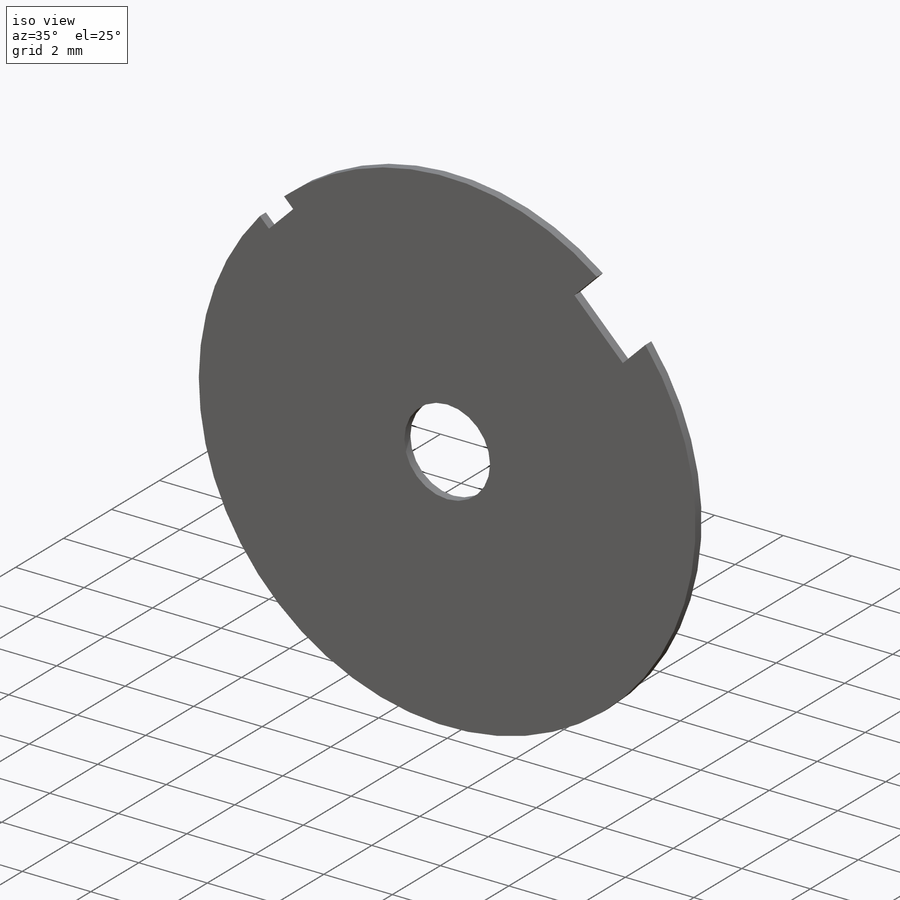
[diagram: iso view]
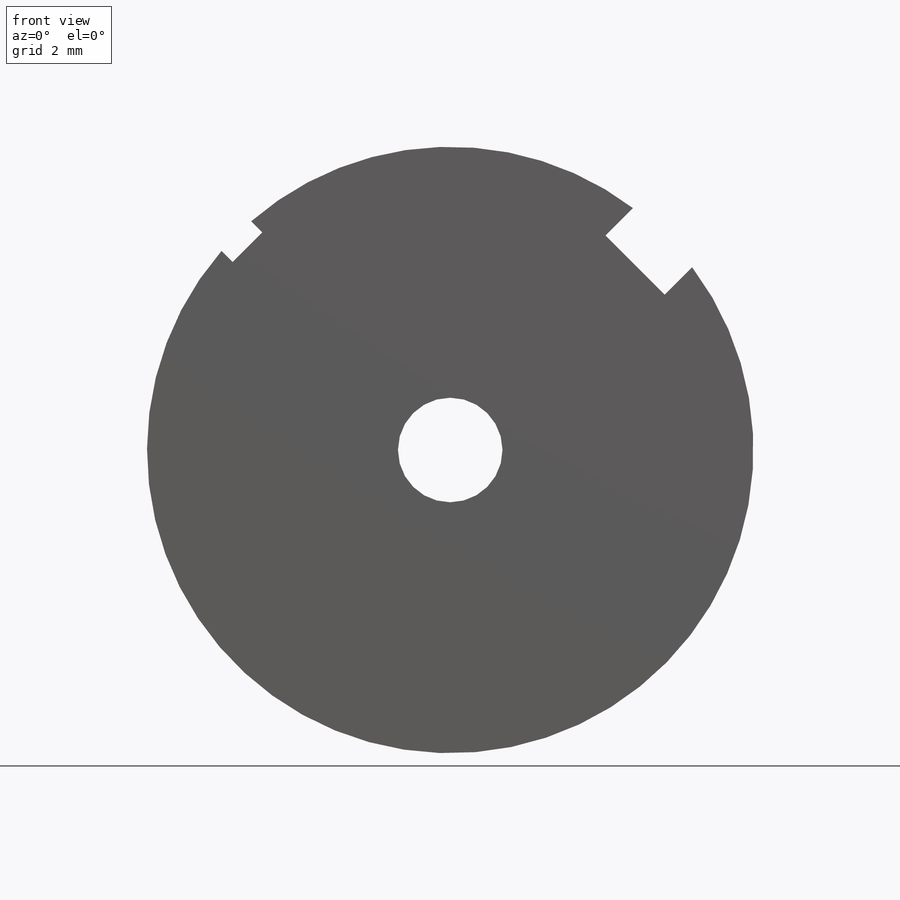
[diagram: front view]
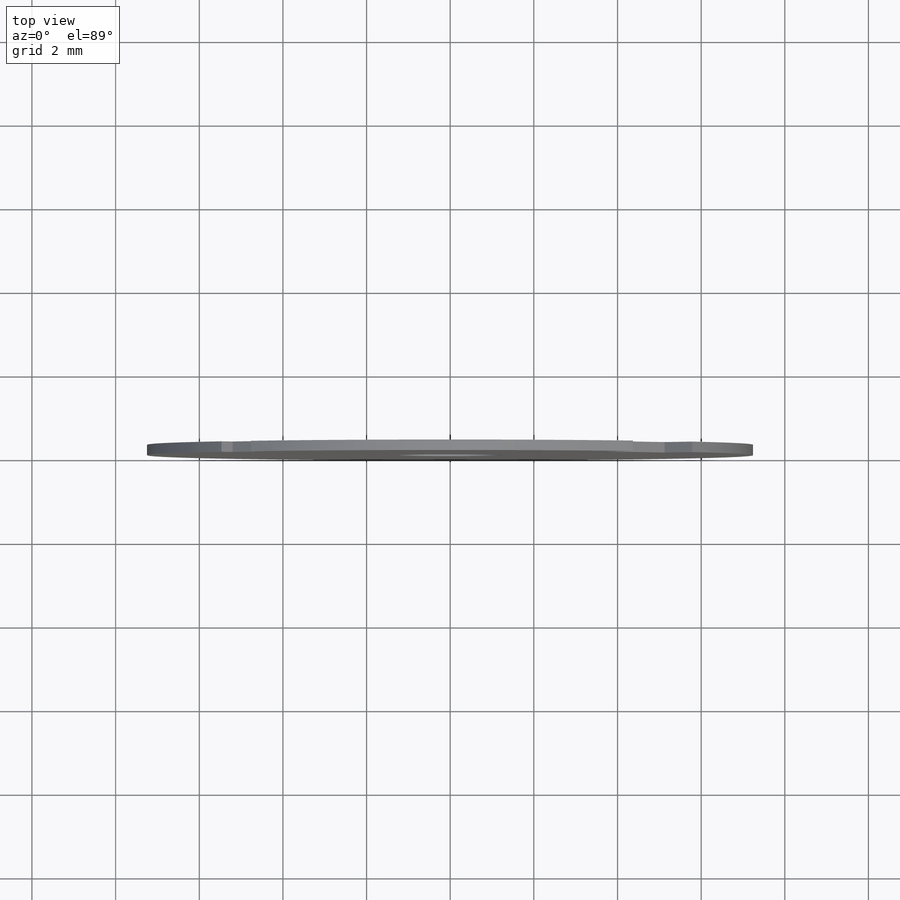
[diagram: top view]
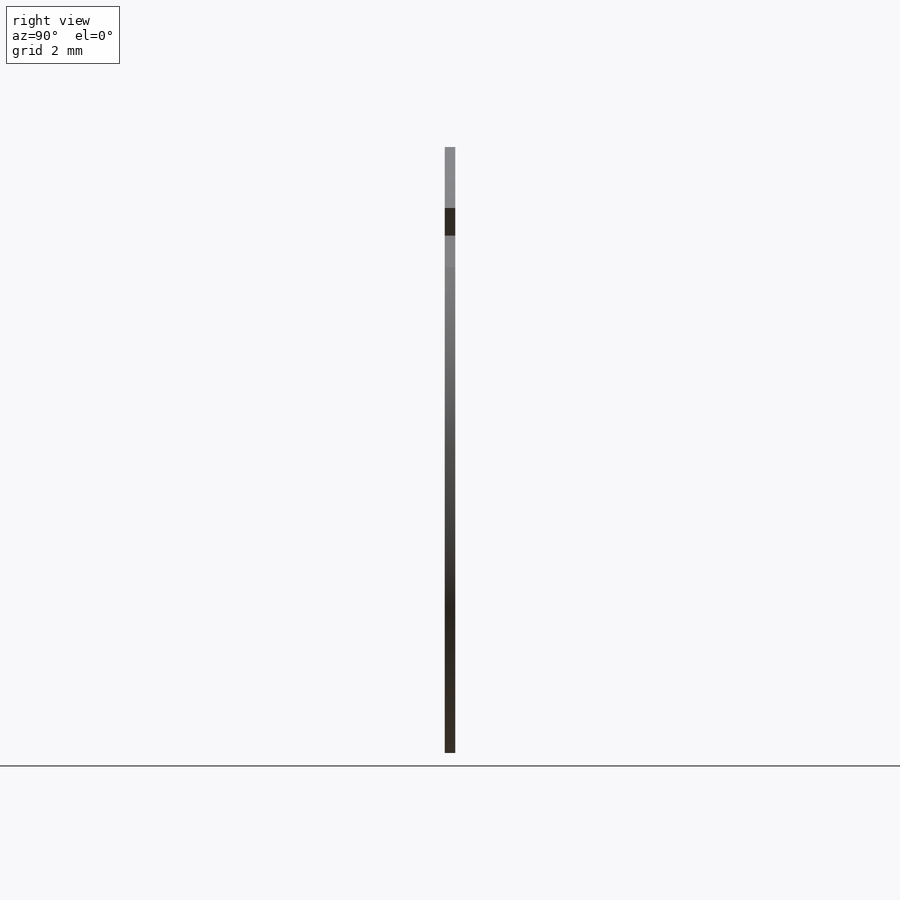
[diagram: right view]
SOLIDWORKS PART (.sldprt)
format: sldprt  version: not decoded by parser v0  size: 185,344 bytes
history: native  units: mm
features: sketch x4, plane x3, sheet_metal_op x2, cut_extrude x2, material x1 + 2 further entries (+8 scaffold rows collapsed)
feature tree (22):
  scaffold x8  (default folders/planes/origin — collapsed)
  material  "Material <sin especificar>"
  plane  "Alzado"
  plane  "Planta"
  plane  "Vista lateral"
  sketch  "Croquis1"  dims[D1=14.5mm]
  sheet_metal_op  "Chapa metálica1"
  sheet_metal_op  "Brida base1"
  sketch  "Croquis5"  dims[D1=2.5mm]
  cut_extrude  "Cortar-Extruir1"  Depth=10mm
  sketch  "Croquis6"  dims[c1.D7=13.75mm c1.D1=~10.124893mm c2.D1=45.0deg c2.D2=~5.872989mm c3.D2=45.0deg c3.D3=1.0mm c3.D4=0.5mm c3.D5=1.0mm c3.D6=2.0mm c3.D8=1.0mm c3.D9=~0.23212mm c4.D4=0.2mm]
  cut_extrude  "Cortar-Extruir2"  Depth=10mm
  "Chapa desplegada1"
  sketch  "Líneas de pliegue1"
  "Transformación de croquis1"
decode coverage: 5 of 8 modeling features carry decoded parameters; 2 rows unclassified (native names shown)
note: ~ marks probable driven/reference dimensions
note: suppression state not decoded; provenance and decode notes live in map.json
